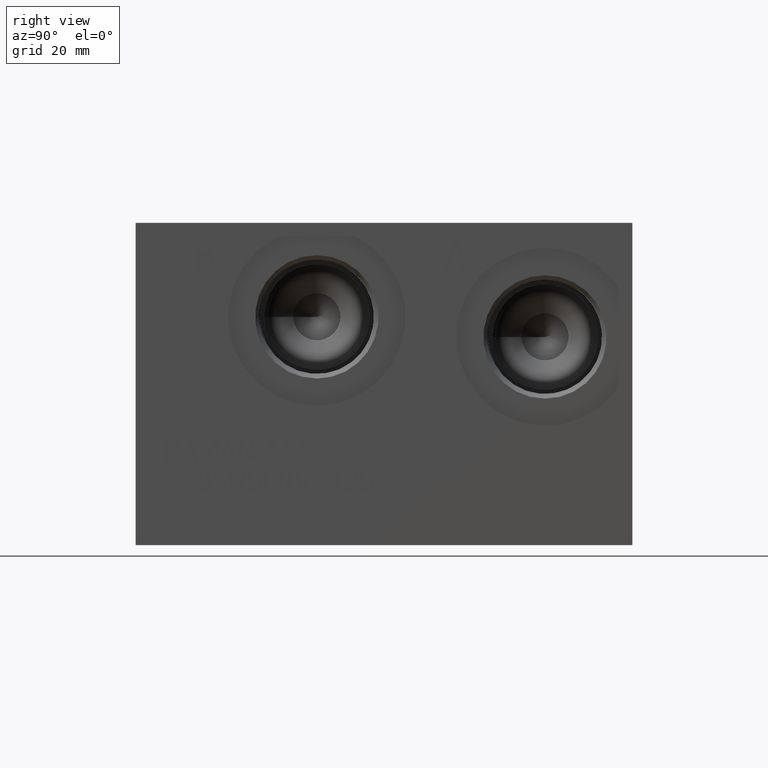
[diagram: clean part render]
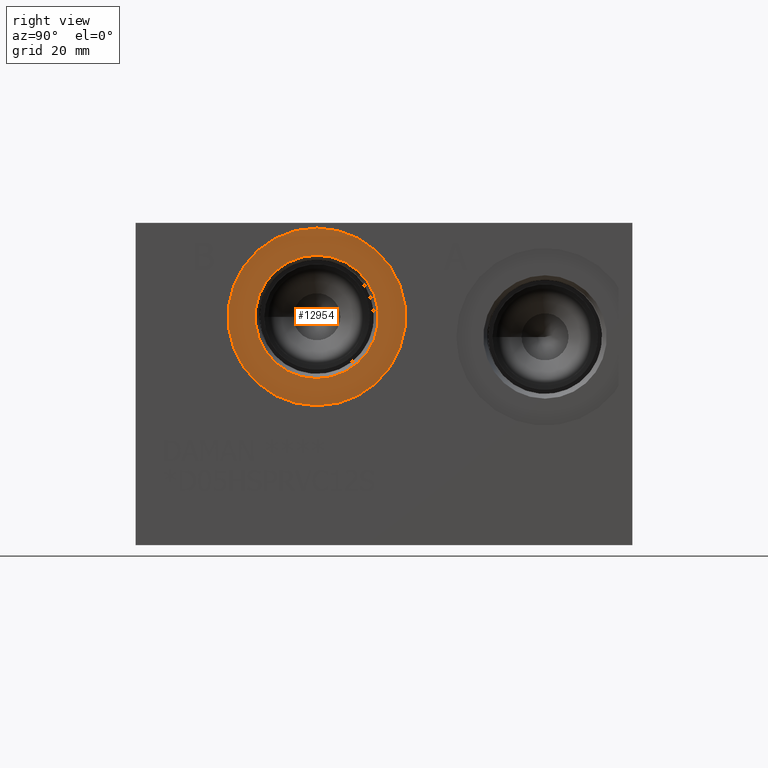
[diagram: same view with one face highlighted and labeled with its STEP entity id]
A machine part, right view. The second image highlights one B-rep face of the part: STEP entity #12954.
In plain terms, the highlighted planar face has unit normal (-1, 0, 0).
Its self-contained STEP definition (entity closure, byte-faithful):
#207=CIRCLE('',#13552,21.0185);
#208=CIRCLE('',#13553,21.0185);
#209=CIRCLE('',#13555,14.5923);
#210=CIRCLE('',#13556,14.5923);
#479=FACE_BOUND('',#2173,.T.);
#885=PLANE('',#13554);
#1448=FACE_OUTER_BOUND('',#2172,.T.);
#2172=EDGE_LOOP('',(#11066,#11067));
#2173=EDGE_LOOP('',(#11068,#11069));
#6111=VERTEX_POINT('',#21655);
#6112=VERTEX_POINT('',#21657);
#6113=VERTEX_POINT('',#21661);
#6114=VERTEX_POINT('',#21662);
#7830=EDGE_CURVE('',#6111,#6112,#207,.T.);
#7831=EDGE_CURVE('',#6112,#6111,#208,.T.);
#7832=EDGE_CURVE('',#6113,#6114,#209,.T.);
#7833=EDGE_CURVE('',#6114,#6113,#210,.T.);
#11066=ORIENTED_EDGE('',*,*,#7831,.F.);
#11067=ORIENTED_EDGE('',*,*,#7830,.F.);
#11068=ORIENTED_EDGE('',*,*,#7832,.T.);
#11069=ORIENTED_EDGE('',*,*,#7833,.T.);
#12954=ADVANCED_FACE('',(#1448,#479),#885,.F.);
#13552=AXIS2_PLACEMENT_3D('',#21658,#15933,#15934);
#13553=AXIS2_PLACEMENT_3D('',#21659,#15935,#15936);
#13554=AXIS2_PLACEMENT_3D('',#21660,#15937,#15938);
#13555=AXIS2_PLACEMENT_3D('',#21663,#15939,#15940);
#13556=AXIS2_PLACEMENT_3D('',#21664,#15941,#15942);
#15933=DIRECTION('center_axis',(-1.,0.,0.));
#15934=DIRECTION('ref_axis',(0.,0.,1.));
#15935=DIRECTION('center_axis',(-1.,0.,0.));
#15936=DIRECTION('ref_axis',(0.,0.,1.));
#15937=DIRECTION('center_axis',(-1.,0.,0.));
#15938=DIRECTION('ref_axis',(0.,0.,1.));
#15939=DIRECTION('center_axis',(-1.,0.,0.));
#15940=DIRECTION('ref_axis',(0.,0.,1.));
#15941=DIRECTION('center_axis',(-1.,0.,0.));
#15942=DIRECTION('ref_axis',(0.,0.,1.));
#21655=CARTESIAN_POINT('',(100.8126,42.8498,74.9935));
#21657=CARTESIAN_POINT('',(100.8126,42.8498,32.9565));
#21658=CARTESIAN_POINT('Origin',(100.8126,42.8498,53.975));
#21659=CARTESIAN_POINT('Origin',(100.8126,42.8498,53.975));
#21660=CARTESIAN_POINT('Origin',(100.8126,42.8498,39.3827));
#21661=CARTESIAN_POINT('',(100.8126,42.8498,39.3827));
#21662=CARTESIAN_POINT('',(100.8126,42.8498,68.5673));
#21663=CARTESIAN_POINT('Origin',(100.8126,42.8498,53.975));
#21664=CARTESIAN_POINT('Origin',(100.8126,42.8498,53.975));